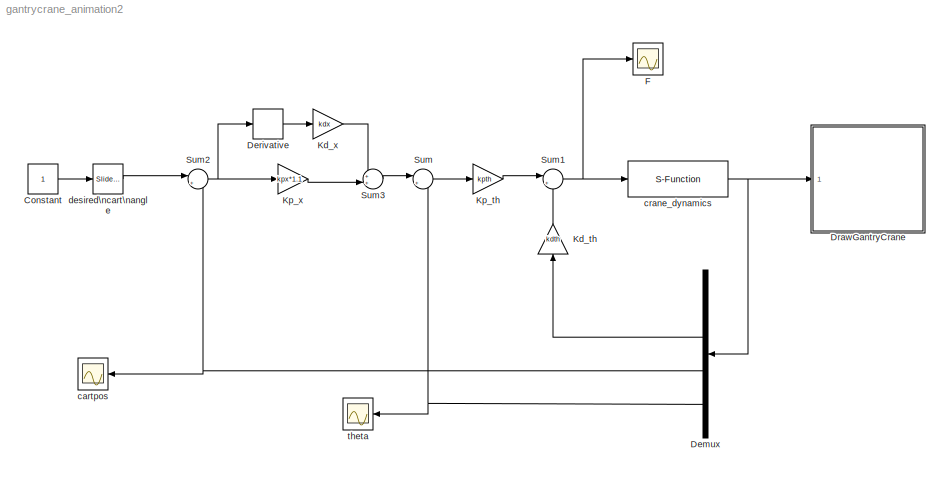
MODEL gantrycrane_animation2
KIND model
BLOCK [Constant] Constant
  SID = 16
BLOCK [Demux] Demux
  DisplayOption = bar
  Ports = [1, 4]
  SID = 21
BLOCK [Derivative] Derivative
  SID = 65
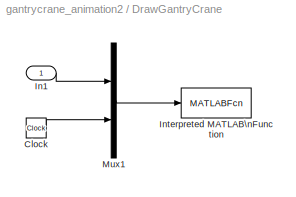
BLOCK [SubSystem] DrawGantryCrane
  FunctionWithSeparateData = off
  MaskHideContents = off
  MinAlgLoopOccurrences = off
  Opaque = off
  Ports = [1]
  PropExecContextOutsideSubsystem = off
  RTWSystemCode = Auto
  RequestExecContextInheritance = off
  SID = 11
BLOCK [Clock] DrawGantryCrane/Clock
  SID = 8
BLOCK [Inport] DrawGantryCrane/In1
  IconDisplay = Port number
  SID = 12
BLOCK [MATLABFcn] DrawGantryCrane/Interpreted MATLAB\nFunction
  MATLABFcn = drawGantryCrane(u,bar,crane,L1,R1)
  OutputDimensions = 0
  Ports = [1]
  SID = 10
  SampleTime = 0.1
BLOCK [Mux] DrawGantryCrane/Mux1
  DisplayOption = bar
  Inputs = 2
  Ports = [2, 1]
  SID = 9
BLOCK [Scope] F
  DataFormat = StructureWithTime
  Floating = off
  NumInputPorts = 1
  Ports = [1]
  SID = 51
  SampleTime = 0
  SaveName = ScopeData3
  ShowLegends = off
  TimeRange = 30
  YMax = 14000
  YMin = -2000
BLOCK [Gain] Kd_th
  Gain = kdth
  OutDataTypeStr = Inherit: Inherit via internal rule
  ParamDataTypeStr = Inherit: Inherit via internal rule
  SID = 57
  SaturateOnIntegerOverflow = off
BLOCK [Gain] Kd_x
  Gain = kdx
  OutDataTypeStr = Inherit: Inherit via internal rule
  ParamDataTypeStr = Inherit: Inherit via internal rule
  SID = 63
  SaturateOnIntegerOverflow = off
BLOCK [Gain] Kp_th
  Gain = kpth
  OutDataTypeStr = Inherit: Inherit via internal rule
  ParamDataTypeStr = Inherit: Inherit via internal rule
  SID = 62
  SaturateOnIntegerOverflow = off
BLOCK [Gain] Kp_x
  Gain = kpx*1.1
  OutDataTypeStr = Inherit: Inherit via internal rule
  ParamDataTypeStr = Inherit: Inherit via internal rule
  SID = 42
  SaturateOnIntegerOverflow = off
BLOCK [Sum] Sum
  IconShape = round
  InputSameDT = off
  Inputs = |+-
  OutDataTypeStr = Inherit: Inherit via internal rule
  Ports = [2, 1]
  SID = 28
  SaturateOnIntegerOverflow = off
BLOCK [Sum] Sum1
  IconShape = round
  InputSameDT = off
  Inputs = |+-
  OutDataTypeStr = Inherit: Inherit via internal rule
  Ports = [2, 1]
  SID = 56
  SaturateOnIntegerOverflow = off
BLOCK [Sum] Sum2
  IconShape = round
  InputSameDT = off
  Inputs = |+-
  OutDataTypeStr = Inherit: Inherit via internal rule
  Ports = [2, 1]
  SID = 43
  SaturateOnIntegerOverflow = off
BLOCK [Sum] Sum3
  IconShape = round
  InputSameDT = off
  Inputs = ++|
  OutDataTypeStr = Inherit: Inherit via internal rule
  Ports = [2, 1]
  SID = 58
  SaturateOnIntegerOverflow = off
BLOCK [Scope] cartpos
  DataFormat = StructureWithTime
  Floating = off
  NumInputPorts = 1
  Ports = [1]
  SID = 39
  SampleTime = 0
  ShowLegends = off
  TimeRange = 30
  YMax = 12
  YMin = 0
BLOCK [S-Function] crane_dynamics
  EnableBusSupport = off
  FunctionName = crane_dynamics
  Parameters = P
  Ports = [1, 1]
  SID = 19
BLOCK [Reference] desired\ncart\nangle  REF=simulink/Math\nOperations/Slider\nGain
  Ports = [1, 1]
  SID = 15
  SourceBlock = simulink/Math\nOperations/Slider\nGain
  SourceType = Slider Gain
  gain = 10
  high = 10
  low = -10
BLOCK [Scope] theta
  DataFormat = StructureWithTime
  Floating = off
  NumInputPorts = 1
  Ports = [1]
  SID = 40
  SampleTime = 0
  SaveName = ScopeData1
  ShowLegends = off
  TimeRange = 30
  YMax = 0.15
  YMin = -0.2
  ZoomMode = xonly
LINE Constant:1 -> desired\ncart\nangle:1
LINE Demux:2 -> Kd_th:1
NET Demux:3 -> Sum2:2, cartpos:1
NET Demux:4 -> Sum:2, theta:1
LINE Derivative:1 -> Kd_x:1
LINE DrawGantryCrane/Clock:1 -> DrawGantryCrane/Mux1:2
LINE DrawGantryCrane/In1:1 -> DrawGantryCrane/Mux1:1
LINE DrawGantryCrane/Mux1:1 -> DrawGantryCrane/Interpreted MATLAB\nFunction:1
LINE Kd_th:1 -> Sum1:2
LINE Kd_x:1 -> Sum3:1
LINE Kp_th:1 -> Sum1:1
LINE Kp_x:1 -> Sum3:2
NET Sum1:1 -> F:1, crane_dynamics:1
NET Sum2:1 -> Derivative:1, Kp_x:1
LINE Sum3:1 -> Sum:1
LINE Sum:1 -> Kp_th:1
NET crane_dynamics:1 -> Demux:1, DrawGantryCrane:1
LINE desired\ncart\nangle:1 -> Sum2:1
note: NET lines group one-source signal fan-out (src -> all destinations, sorted); 1:1 wires keep LINE
